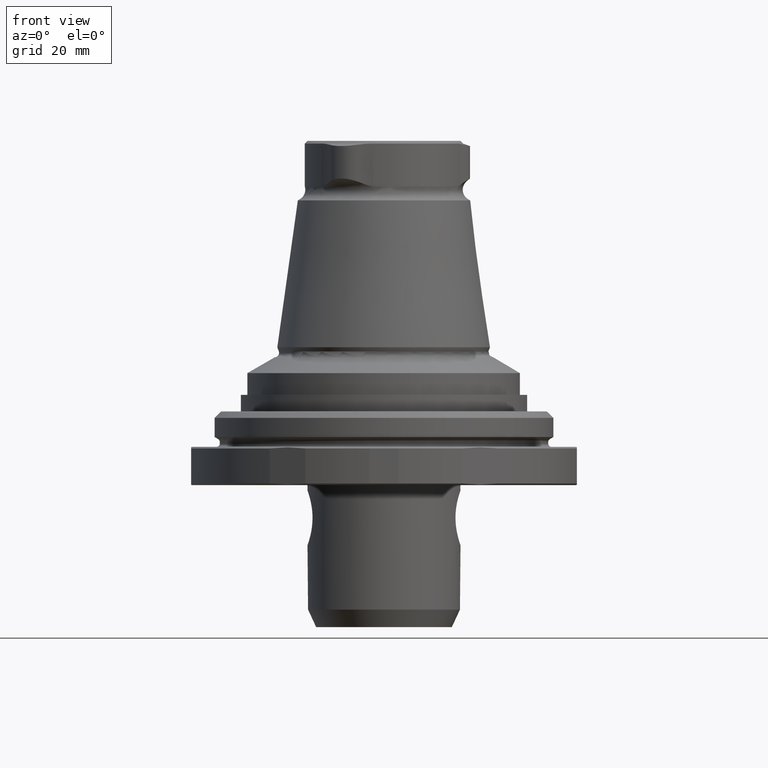
[diagram: clean part render]
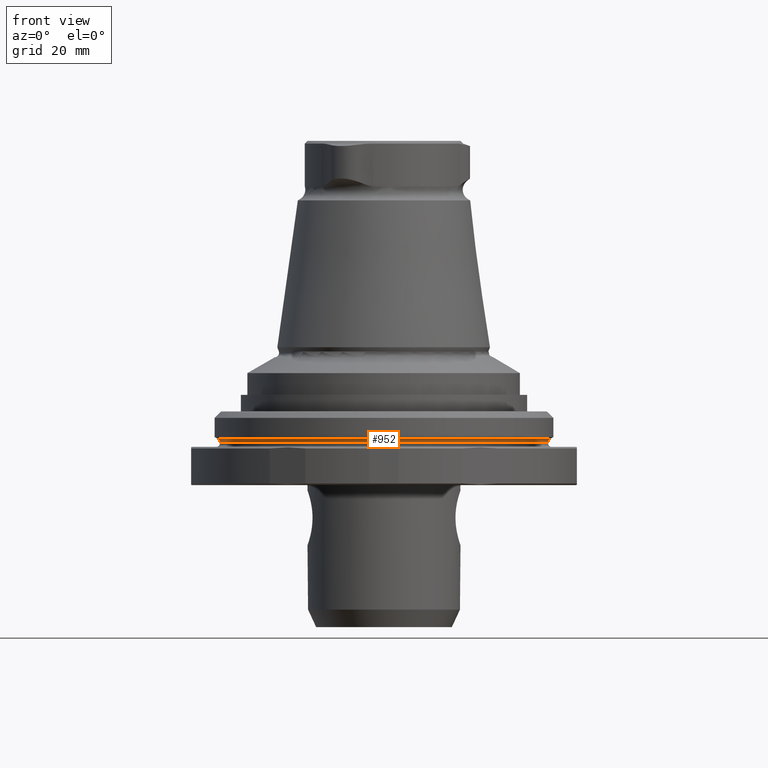
[diagram: same view with one face highlighted and labeled with its STEP entity id]
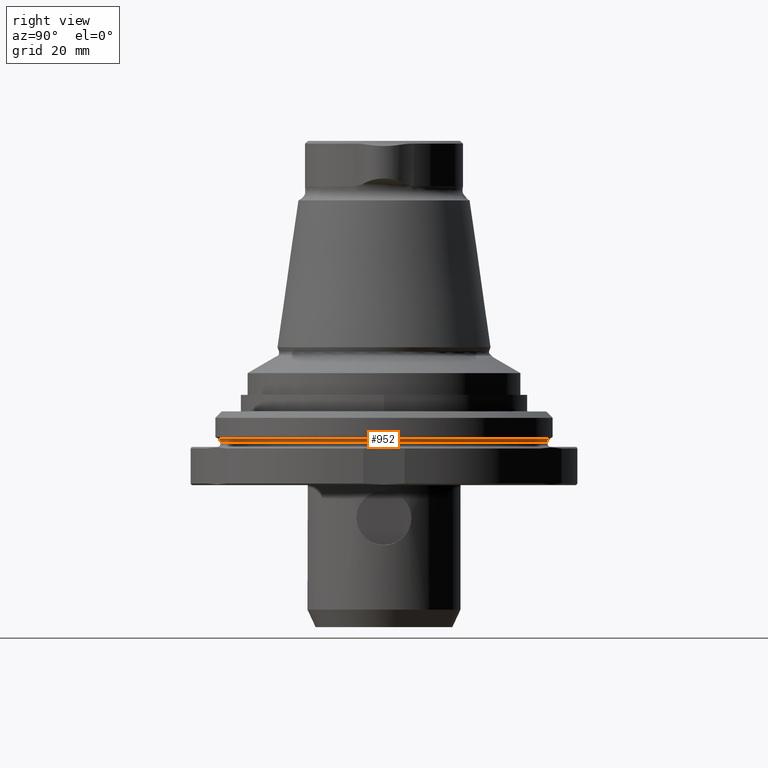
[diagram: same view with one face highlighted and labeled with its STEP entity id]
A machine part, front view. The second image highlights one B-rep face of the part: STEP entity #952.
A second angle (right view) of the same face is appended — the face is thin or edge-on in the first view.
In plain terms, the highlighted toroidal blend (fillet) surface has major radius 30.65 mm and minor (blend) radius 0.6 mm.
Its self-contained STEP definition (entity closure, byte-faithful):
#23=TOROIDAL_SURFACE('',#1079,30.65,0.6);
#161=CIRCLE('',#1078,30.05);
#162=CIRCLE('',#1080,30.35);
#400=ORIENTED_EDGE('',*,*,#536,.F.);
#401=ORIENTED_EDGE('',*,*,#537,.T.);
#536=EDGE_CURVE('',#627,#627,#161,.T.);
#537=EDGE_CURVE('',#628,#628,#162,.T.);
#627=VERTEX_POINT('',#1797);
#628=VERTEX_POINT('',#1800);
#754=EDGE_LOOP('',(#400));
#755=EDGE_LOOP('',(#401));
#850=FACE_BOUND('',#754,.T.);
#851=FACE_BOUND('',#755,.T.);
#952=ADVANCED_FACE('',(#850,#851),#23,.F.);
#1078=AXIS2_PLACEMENT_3D('',#1796,#1331,#1332);
#1079=AXIS2_PLACEMENT_3D('',#1798,#1333,#1334);
#1080=AXIS2_PLACEMENT_3D('',#1799,#1335,#1336);
#1331=DIRECTION('',(-5.47430718319515E-16,-9.52839907700963E-18,-1.));
#1332=DIRECTION('',(-1.,8.32667268468868E-16,5.47430716006892E-16));
#1333=DIRECTION('',(-5.47430718319515E-16,-9.52839907700963E-18,-1.));
#1334=DIRECTION('',(-1.,8.32667268468868E-16,5.47430716006892E-16));
#1335=DIRECTION('',(-5.47430718319515E-16,-9.52839907700963E-18,-1.));
#1336=DIRECTION('',(-1.,8.32667268468868E-16,5.47430716006892E-16));
#1796=CARTESIAN_POINT('',(-8.84153996968029E-14,-9.82178454833369E-14,-0.0948929172439212));
#1797=CARTESIAN_POINT('',(-30.0500000000001,-7.31961940658474E-14,-0.0948929172439047));
#1798=CARTESIAN_POINT('',(-8.84153996968029E-14,-9.82178454833369E-14,-0.0948929172439211));
#1799=CARTESIAN_POINT('',(-8.81309463514769E-14,-9.8212894381942E-14,0.424722325026744));
#1800=CARTESIAN_POINT('',(-30.3500000000001,-7.29414427839119E-14,0.42472232502676));